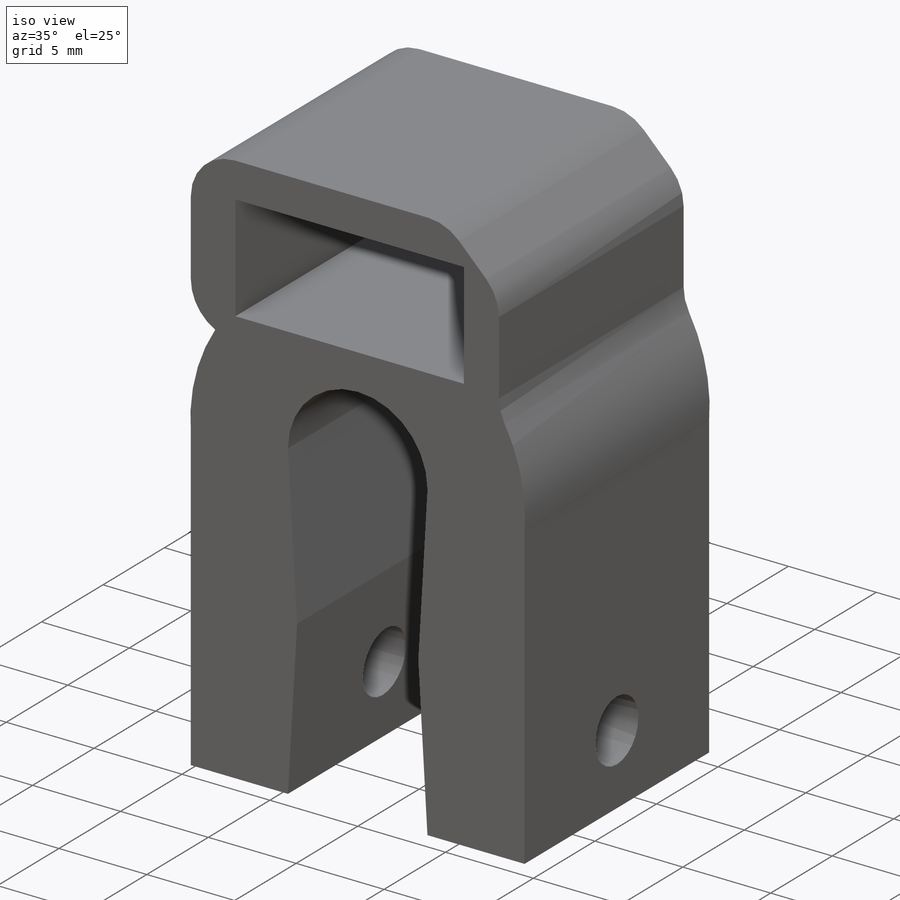
[diagram: iso view]
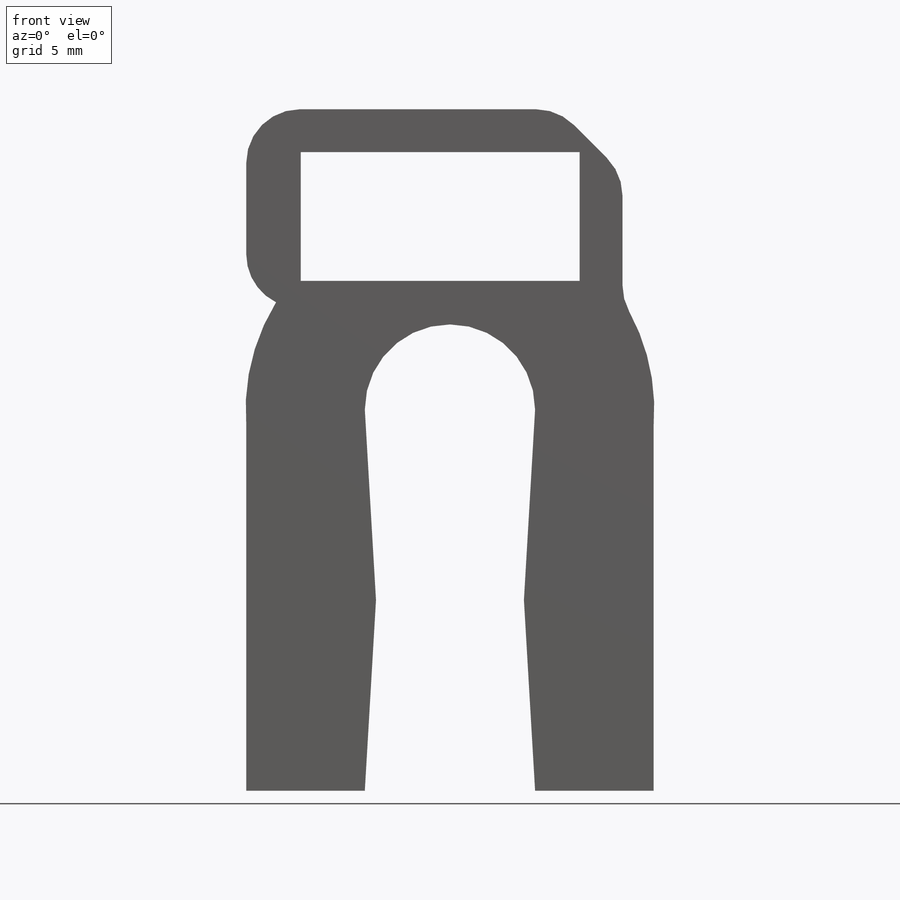
[diagram: front view]
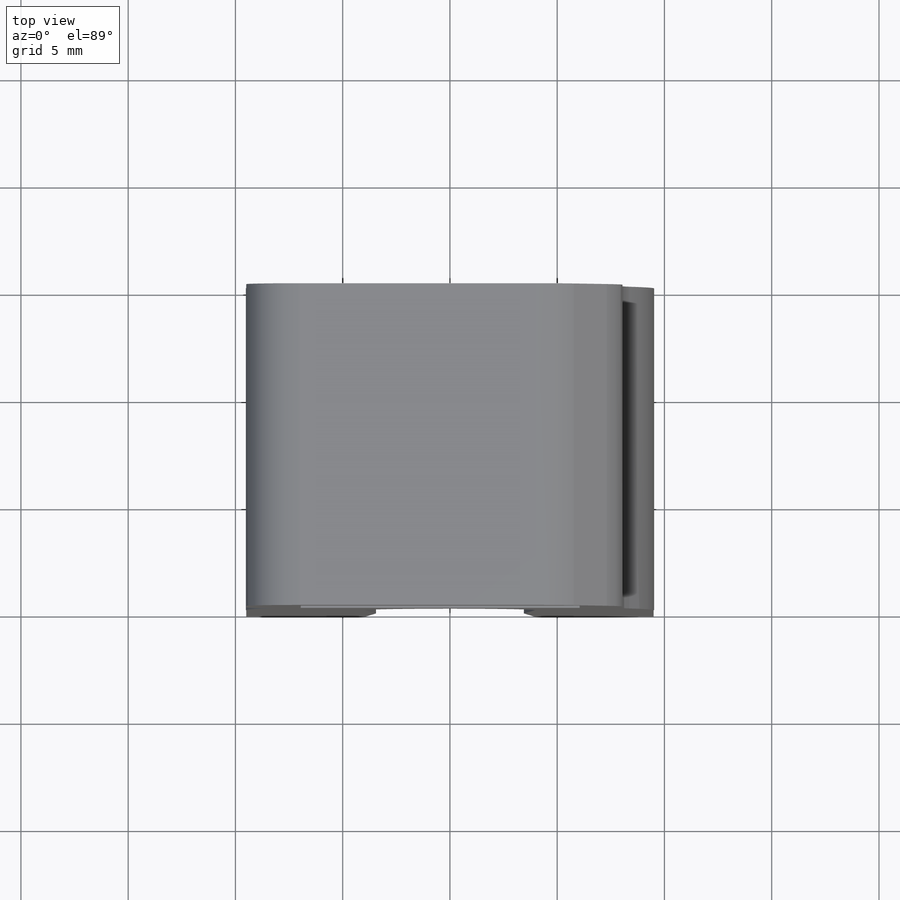
[diagram: top view]
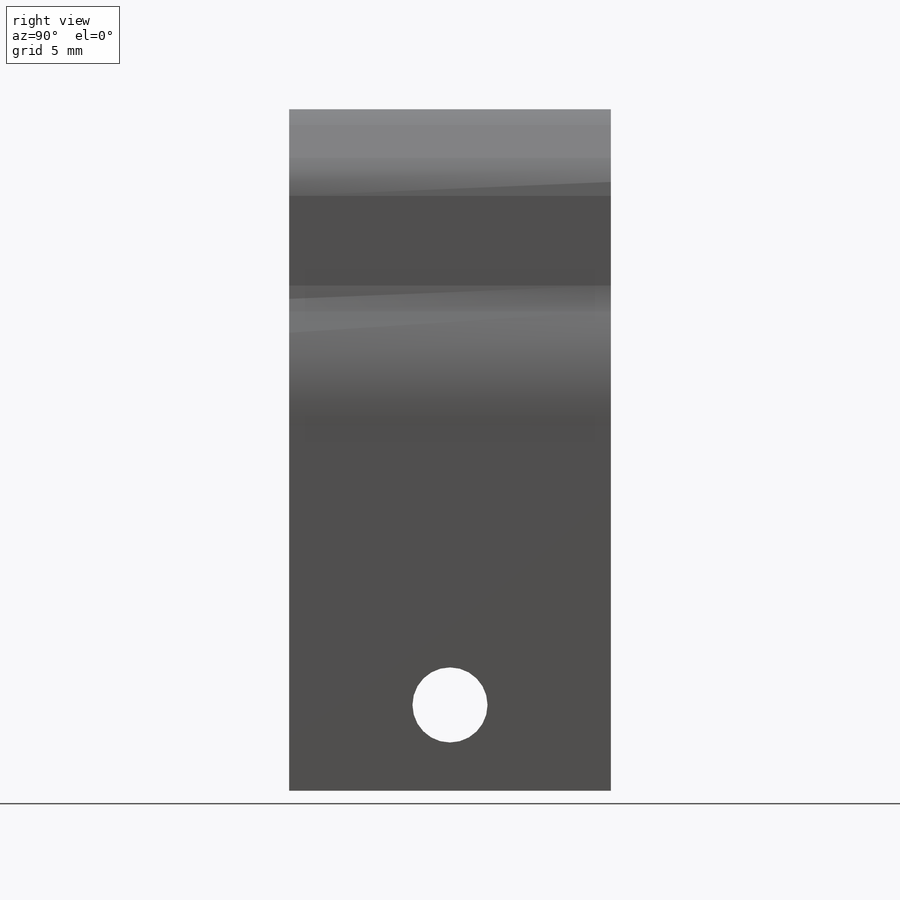
[diagram: right view]
SOLIDWORKS PART (.sldprt)
format: sldprt  version: not decoded by parser v0  size: 258,048 bytes
history: native  units: mm
features: sketch x4, extrude x2, cut_extrude x2, material x1, plane x1, chamfer x1, fillet x1 (+12 scaffold rows collapsed)
feature tree (24):
  scaffold x12  (default folders/planes/origin — collapsed)
  material  "ABS PC"
  plane  "New Front Plane"  Offset=100mm
  sketch  "Sketch1"  dims[c1.D1=7.9375mm c1.D2=19.05mm c2.D1=~3.96875mm c2.D2=9.525mm c2.D3=0.508mm c2.D4=3.302mm c2.D5=7.9375mm c2.D6=8.89mm]
  extrude  "Clip"  Depth=15mm
  sketch  "Sketch7"  dims[D1=3.5mm D2=7.5mm D3=4.0mm]
  cut_extrude  "Cut-Extrude4"  Depth=19.812mm
  sketch  "Sketch8"  dims[c1.D1=~3.036638mm c1.D2=~9.128339mm c2.D1=17.54mm c2.D2=9.0mm c2.D3=5.0mm]
  extrude  "Boss-Extrude1"  Depth=15mm
  sketch  "Sketch10"  dims[c1.D1=~4.640111mm c1.D2=~9.520073mm c2.D1=6.0mm c2.D2=13.0mm c2.D3=2.0mm c2.D4=2.0mm]
  cut_extrude  "Cut-Extrude5"  Depth=15mm
  chamfer  "Chamfer2"  Distance=3mm Angle=45deg
  fillet  "Fillet1"  Radius=2.5mm
decode coverage: 10 of 10 modeling features carry decoded parameters
note: ~ marks probable driven/reference dimensions
note: suppression state not decoded; provenance and decode notes live in map.json
